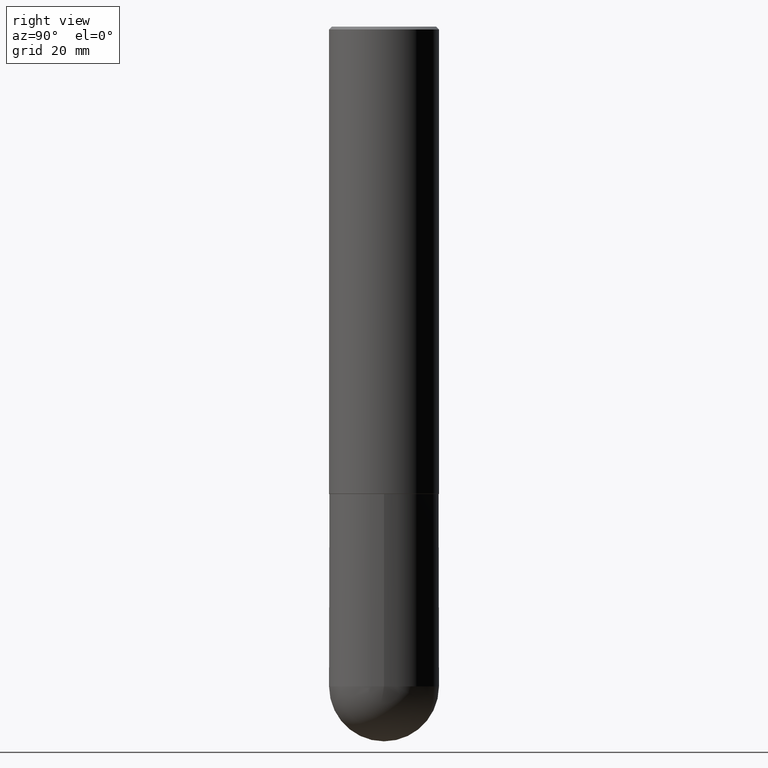
[diagram: clean part render]
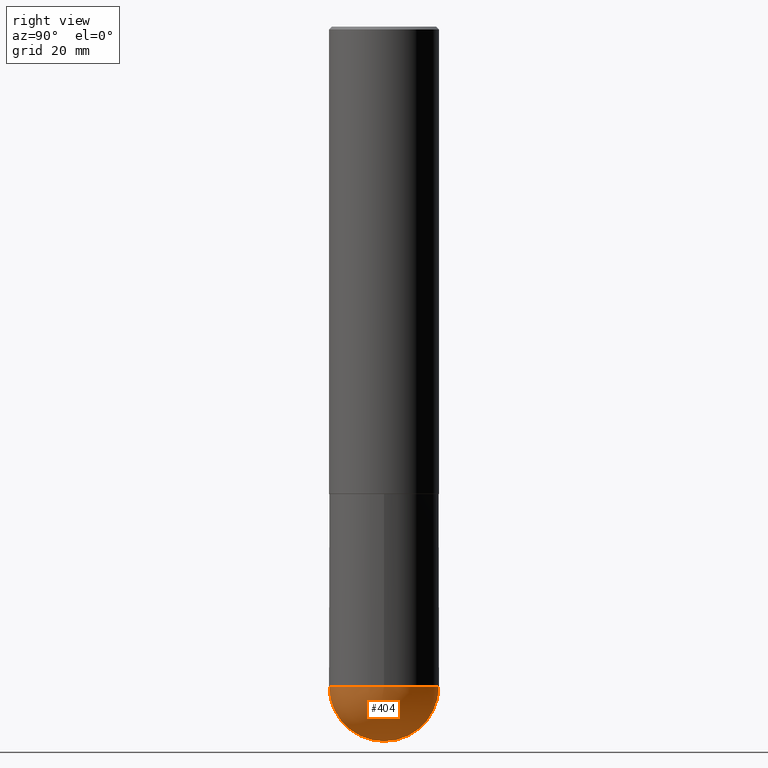
[diagram: same view with one face highlighted and labeled with its STEP entity id]
A machine part, right view. The second image highlights one B-rep face of the part: STEP entity #404.
In plain terms, the highlighted spherical surface has radius 10 mm.
Its self-contained STEP definition (entity closure, byte-faithful):
#31 = FACE_OUTER_BOUND ( 'NONE', #397, .T. ) ;
#38 = AXIS2_PLACEMENT_3D ( 'NONE', #274, #108, #172 ) ;
#40 = ORIENTED_EDGE ( 'NONE', *, *, #136, .F. ) ;
#68 = ORIENTED_EDGE ( 'NONE', *, *, #311, .F. ) ;
#82 = EDGE_CURVE ( 'NONE', #365, #405, #94, .T. ) ;
#94 = CIRCLE ( 'NONE', #391, 0.3937000000000003830 ) ;
#95 = DIRECTION ( 'NONE',  ( -1.000000000000000000, 6.982962677686265922E-15, -4.883557194083112340E-29 ) ) ;
#108 = DIRECTION ( 'NONE',  ( -1.000000000000000000, 7.105427357601001070E-15, -4.926315508542082329E-29 ) ) ;
#119 = CARTESIAN_POINT ( 'NONE',  ( 0.3936999999999999389, -1.683871620097271747E-14, -4.724400000000000155 ) ) ;
#132 = CIRCLE ( 'NONE', #138, 0.3936999999999999389 ) ;
#136 = EDGE_CURVE ( 'NONE', #338, #405, #132, .T. ) ;
#138 = AXIS2_PLACEMENT_3D ( 'NONE', #208, #307, #218 ) ;
#148 = CARTESIAN_POINT ( 'NONE',  ( 2.749192406205197601E-15, 0.3936999999999834521, -4.724400000000001931 ) ) ;
#153 = CIRCLE ( 'NONE', #38, 0.3937000000000003830 ) ;
#172 = DIRECTION ( 'NONE',  ( -7.105427357600999492E-15, -1.000000000000000000, 0.000000000000000000 ) ) ;
#173 = CARTESIAN_POINT ( 'NONE',  ( 1.122225305002717438E-28, -1.696933680537060797E-14, -4.724400000000000155 ) ) ;
#184 = DIRECTION ( 'NONE',  ( 1.000000000000000000, -6.982962677686265133E-15, 0.000000000000000000 ) ) ;
#192 = AXIS2_PLACEMENT_3D ( 'NONE', #255, #95, #350 ) ;
#198 = AXIS2_PLACEMENT_3D ( 'NONE', #286, #333, #184 ) ;
#208 = CARTESIAN_POINT ( 'NONE',  ( 1.155337282794106175E-28, -1.649515443723055925E-14, -4.724400000000000155 ) ) ;
#213 = DIRECTION ( 'NONE',  ( 6.982962677686265133E-15, 1.000000000000000000, 0.000000000000000000 ) ) ;
#218 = DIRECTION ( 'NONE',  ( 1.000000000000000000, -6.982962677686265133E-15, 0.000000000000000000 ) ) ;
#227 = EDGE_CURVE ( 'NONE', #365, #230, #153, .T. ) ;
#230 = VERTEX_POINT ( 'NONE', #234 ) ;
#234 = CARTESIAN_POINT ( 'NONE',  ( -2.797406750687401585E-15, -0.3937000000000168698, -4.724399999999999267 ) ) ;
#255 = CARTESIAN_POINT ( 'NONE',  ( 1.122225305002717438E-28, -1.696933680537060797E-14, -4.724400000000000155 ) ) ;
#274 = CARTESIAN_POINT ( 'NONE',  ( 1.122225305002717438E-28, -1.696933680537060797E-14, -4.724400000000000155 ) ) ;
#278 = SPHERICAL_SURFACE ( 'NONE', #192, 0.3937000000000003830 ) ;
#279 = DIRECTION ( 'NONE',  ( 1.000000000000000000, -6.982962677686265922E-15, 4.883557194083112340E-29 ) ) ;
#286 = CARTESIAN_POINT ( 'NONE',  ( 1.155337282794106175E-28, -1.649515443723055925E-14, -4.724400000000000155 ) ) ;
#294 = ORIENTED_EDGE ( 'NONE', *, *, #82, .T. ) ;
#306 = ORIENTED_EDGE ( 'NONE', *, *, #227, .F. ) ;
#307 = DIRECTION ( 'NONE',  ( -2.445468806185136597E-29, 3.491481338843145583E-15, 1.000000000000000000 ) ) ;
#311 = EDGE_CURVE ( 'NONE', #230, #338, #400, .T. ) ;
#333 = DIRECTION ( 'NONE',  ( -2.445468806185136597E-29, 3.491481338843145583E-15, 1.000000000000000000 ) ) ;
#338 = VERTEX_POINT ( 'NONE', #119 ) ;
#350 = DIRECTION ( 'NONE',  ( 6.982962677686265922E-15, 1.000000000000000000, -4.163344669033671690E-15 ) ) ;
#353 = CARTESIAN_POINT ( 'NONE',  ( 1.220186806742475998E-28, -1.831982583623194050E-14, -5.118100000000000094 ) ) ;
#365 = VERTEX_POINT ( 'NONE', #353 ) ;
#391 = AXIS2_PLACEMENT_3D ( 'NONE', #173, #279, #213 ) ;
#397 = EDGE_LOOP ( 'NONE', ( #306, #294, #40, #68 ) ) ;
#400 = CIRCLE ( 'NONE', #198, 0.3936999999999999389 ) ;
#404 = ADVANCED_FACE ( 'NONE', ( #31 ), #278, .T. ) ;
#405 = VERTEX_POINT ( 'NONE', #148 ) ;